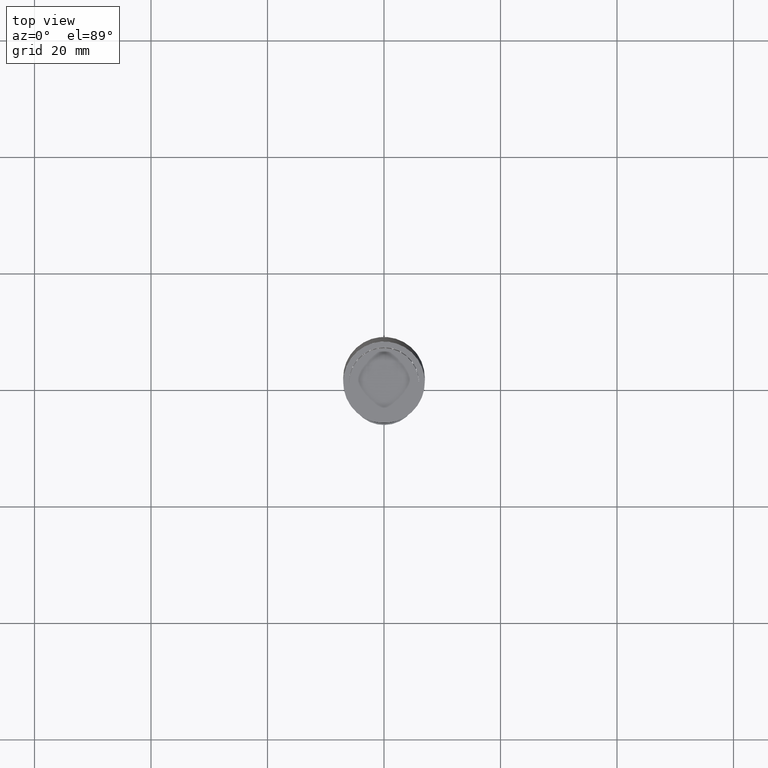
[diagram: clean part render]
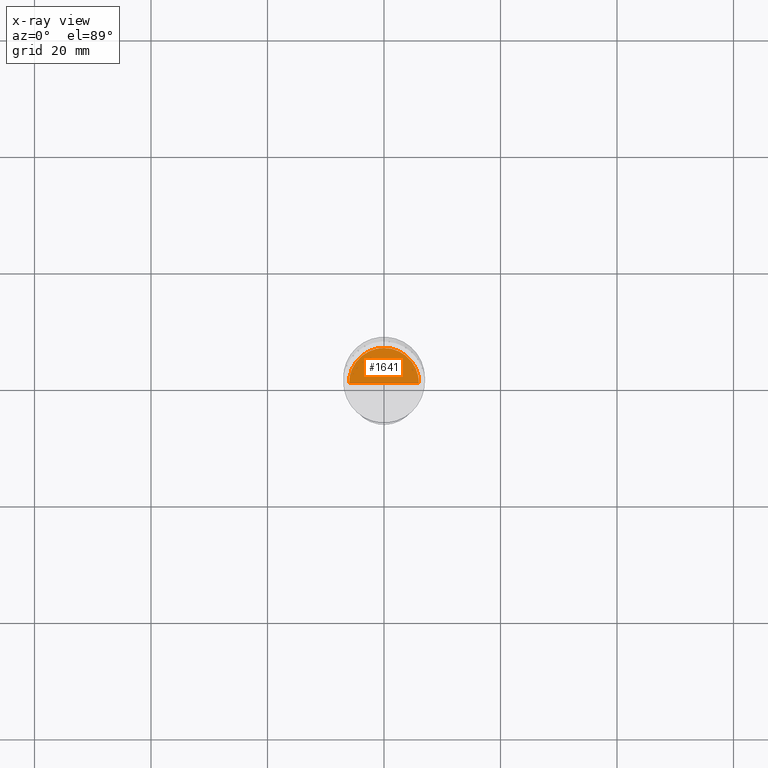
[diagram: x-ray — body ghosted, one internal face saturated and labeled with its STEP entity id]
A machine part, top view, then the same camera in x-ray: the body is ghosted and one INTERNAL B-rep face — a face not visible from any outside direction — is saturated and labeled: STEP entity #1641.
In plain terms, the highlighted face is a freeform B-spline surface patch.
Its self-contained STEP definition (entity closure, byte-faithful):
#1460=CARTESIAN_POINT('',(6.0,0.0,-7.0));
#1461=CARTESIAN_POINT('',(6.0,6.0,-7.0));
#1462=CARTESIAN_POINT('',(0.0,6.0,-7.0));
#1463=CARTESIAN_POINT('',(-6.0,6.0,-7.0));
#1464=CARTESIAN_POINT('',(-6.0,0.0,-7.0));
#1465=CARTESIAN_POINT('',(0.0,0.0,-7.0));
#1626=(
BOUNDED_SURFACE()
B_SPLINE_SURFACE(1,2,(
(#1465,#1465,#1465,#1465,#1465),
(#1460,#1461,#1462,#1463,#1464)
), .UNSPECIFIED.,.F.,.F.,.F.)
B_SPLINE_SURFACE_WITH_KNOTS((2,2),(3,2,3),(
0.0,1.0),(
0.0,0.5,1.0), .UNSPECIFIED.)
GEOMETRIC_REPRESENTATION_ITEM()
RATIONAL_B_SPLINE_SURFACE(((1.0,0.707106781187,1.0,0.707106781187,1.0),
(1.0,0.707106781187,1.0,0.707106781187,1.0)
))
REPRESENTATION_ITEM('')
SURFACE()
);
#1627=(
BOUNDED_CURVE()
B_SPLINE_CURVE(1,(#1464,#1465),.UNSPECIFIED.,.F.,.F.)
B_SPLINE_CURVE_WITH_KNOTS((2,2),
(0.0,1.0),.UNSPECIFIED.)
CURVE()
GEOMETRIC_REPRESENTATION_ITEM()
RATIONAL_B_SPLINE_CURVE((1.0,1.0))
REPRESENTATION_ITEM('')
);
#1628=(
BOUNDED_CURVE()
B_SPLINE_CURVE(1,(#1465,#1460),.UNSPECIFIED.,.F.,.F.)
B_SPLINE_CURVE_WITH_KNOTS((2,2),
(0.0,1.0),.UNSPECIFIED.)
CURVE()
GEOMETRIC_REPRESENTATION_ITEM()
RATIONAL_B_SPLINE_CURVE((1.0,1.0))
REPRESENTATION_ITEM('')
);
#1629=(
BOUNDED_CURVE()
B_SPLINE_CURVE(2,(#1460,#1461,#1462,#1463,#1464),.UNSPECIFIED.,.F.,.F.)
B_SPLINE_CURVE_WITH_KNOTS((3,2,3),
(0.0,0.5,1.0),.UNSPECIFIED.)
CURVE()
GEOMETRIC_REPRESENTATION_ITEM()
RATIONAL_B_SPLINE_CURVE((1.0,0.707106781187,1.0,0.707106781187,1.0))
REPRESENTATION_ITEM('')
);
#1630=VERTEX_POINT('',#1460);
#1631=VERTEX_POINT('',#1464);
#1632=VERTEX_POINT('',#1465);
#1633=EDGE_CURVE('',#1631,#1632,#1627,.T.);
#1634=EDGE_CURVE('',#1632,#1630,#1628,.T.);
#1635=EDGE_CURVE('',#1630,#1631,#1629,.T.);
#1636=ORIENTED_EDGE('',*,*,#1633,.T.);
#1637=ORIENTED_EDGE('',*,*,#1634,.T.);
#1638=ORIENTED_EDGE('',*,*,#1635,.T.);
#1639=EDGE_LOOP('',(#1636,#1637,#1638));
#1640=FACE_OUTER_BOUND('',#1639,.T.);
#1641=ADVANCED_FACE('',(#1640),#1626,.T.);